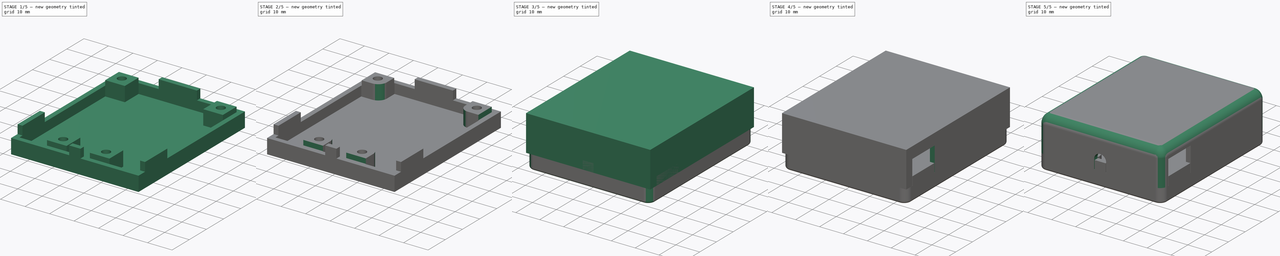
[diagram: build sequence overview — one tinted view per stage of 5, left to right]
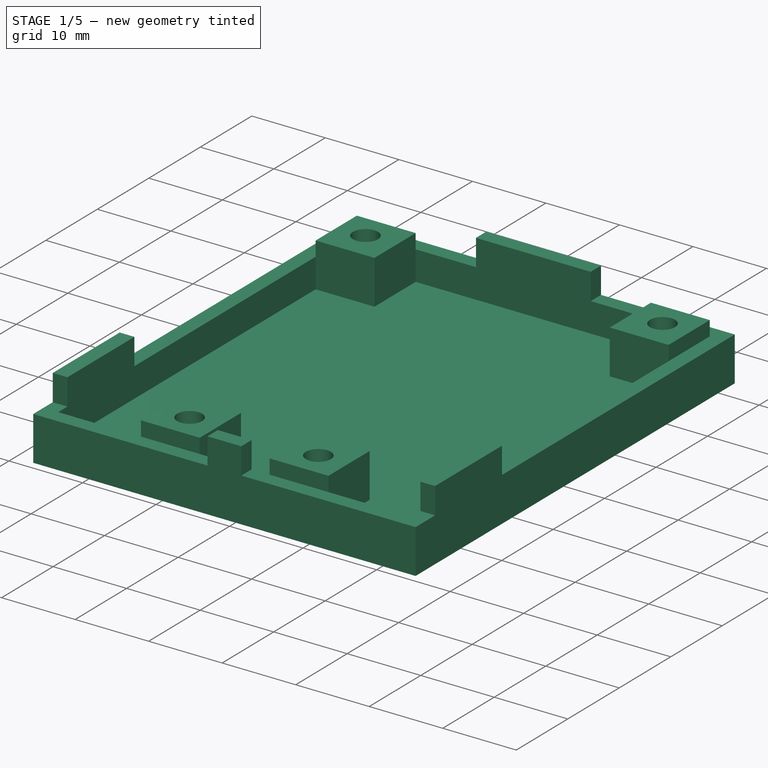
[diagram: stage 1 of 5 — iso view after this stage's code; geometry added in this stage tinted green]
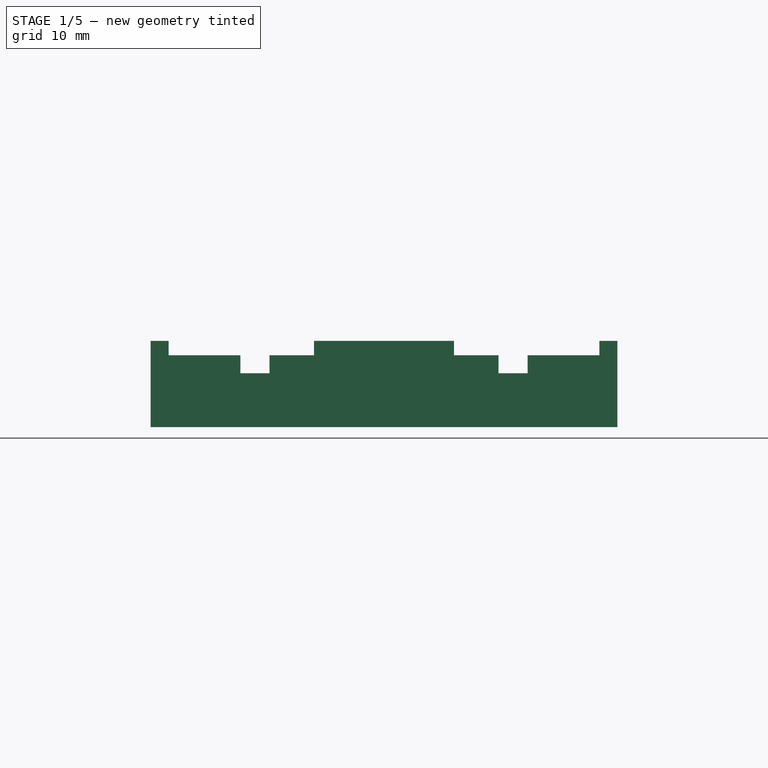
[diagram: stage 1 of 5 — front view after this stage's code; geometry added in this stage tinted green]
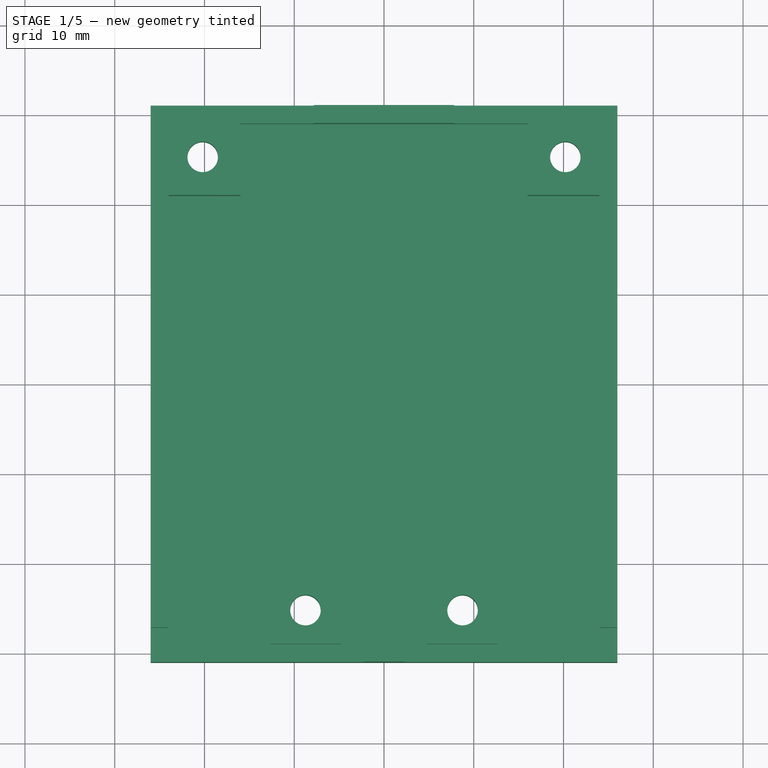
[diagram: stage 1 of 5 — top view after this stage's code; geometry added in this stage tinted green]
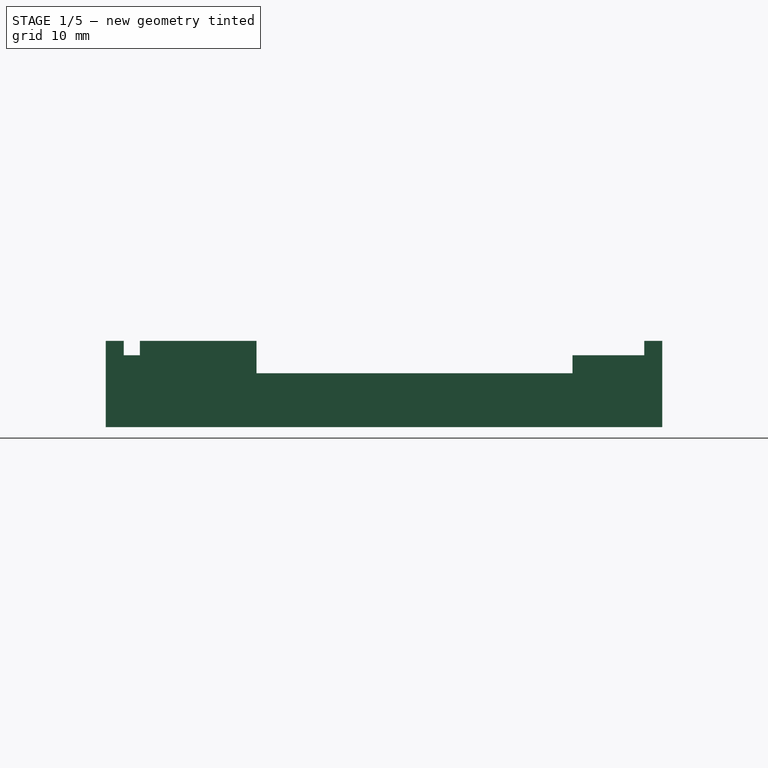
[diagram: stage 1 of 5 — right view after this stage's code; geometry added in this stage tinted green]
FCSTD DOCUMENT  (FreeCAD 0.21R33694 (Git))
Label: sigplane-power
License: All rights reserved
LicenseURL: http://en.wikipedia.org/wiki/All_rights_reserved
objects: Part::Feature×26, App::Part×17, Sketcher::SketchObject×12, PartDesign::Pocket×11, PartDesign::Fillet×8, PartDesign::Pad×5, PartDesign::Body×2
note: 88 computed .brp shape members not serialized (recipe doc carries the construction recipe); baked Part::Feature solids carry a one-line shape summary decoded from their .brp

FEATURE [PartDesign::Body] Body  label="top"
  Group = -> [Sketch,Pad,Sketch001,Pocket,Sketch002,Pad001,Sketch003,Pocket001,Sketch004,Pocket002,Sketch005,Pocket003,Sketch006,Pocket004,Fillet,Fillet001,Fillet002,Fillet003]
  Origin = -> Origin017
  Placement = pos=(0,0,-2) rot=(0,0,1;0rad)
  Tip = -> Fillet003
FEATURE [Sketcher::SketchObject] Sketch007
  FullyConstrained = true
  MapMode = 5
  Support = -> [XY_Plane018]
  sketch-geometry (4):
    g0: LineSegment StartX=-26 StartY=31 StartZ=0 EndX=26 EndY=31 EndZ=0
    g1: LineSegment StartX=26 StartY=31 StartZ=0 EndX=26 EndY=-31 EndZ=0
    g2: LineSegment StartX=26 StartY=-31 StartZ=0 EndX=-26 EndY=-31 EndZ=0
    g3: LineSegment StartX=-26 StartY=-31 StartZ=0 EndX=-26 EndY=31 EndZ=0
  constraints (11):
    c: Coincident(g0,g1)
    c: Coincident(g1,g2)
    c: Coincident(g2,g3)
    c: Coincident(g3,g0)
    c: Horizontal(g0)
    c: Horizontal(g2)
    c: Vertical(g1)
    c: Vertical(g3)
    c: DistanceX(g0,g0) = 52
    c: DistanceY(g3,g3) = 62
    c: Symmetric(g0,g1,g-1)
FEATURE [PartDesign::Pad] Pad002
  Direction = (0,0,1)
  Length = 6
  Length2 = 10
  Profile = -> Sketch007
  ReferenceAxis = -> Sketch007 [N_Axis]
  Reversed = true
  Type = 0
FEATURE [Sketcher::SketchObject] Sketch008
  FullyConstrained = true
  MapMode = 5
  Support = -> [Pad002]
  sketch-geometry (4):
    g0: LineSegment StartX=-24 StartY=29 StartZ=0 EndX=24 EndY=29 EndZ=0
    g1: LineSegment StartX=24 StartY=29 StartZ=0 EndX=24 EndY=-29 EndZ=0
    g2: LineSegment StartX=24 StartY=-29 StartZ=0 EndX=-24 EndY=-29 EndZ=0
    g3: LineSegment StartX=-24 StartY=-29 StartZ=0 EndX=-24 EndY=29 EndZ=0
  constraints (11):
    c: Coincident(g0,g1)
    c: Coincident(g1,g2)
    c: Coincident(g2,g3)
    c: Coincident(g3,g0)
    c: Horizontal(g0)
    c: Horizontal(g2)
    c: Vertical(g1)
    c: Vertical(g3)
    c: DistanceY(g3,g3) = 58
    c: DistanceX(g0,g0) = 48
    c: Symmetric(g0,g1,g-1)
FEATURE [PartDesign::Pocket] Pocket005
  BaseFeature = -> Pad002
  Direction = (0,0,-1)
  Length = 4
  Length2 = 5
  Profile = -> Sketch008
  ReferenceAxis = -> Sketch008 [N_Axis]
  Type = 0
FEATURE [Sketcher::SketchObject] Sketch009
  ExternalGeometry = -> [Pocket005]
  FullyConstrained = false
  MapMode = 5
  Placement = pos=(0,0,-4) rot=(0,0,1;0rad)
  Support = -> [Pocket005]
  sketch-geometry (21):
    g0: LineSegment StartX=-24 StartY=29 StartZ=0 EndX=-16 EndY=29 EndZ=0
    g1: LineSegment StartX=-16 StartY=29 StartZ=0 EndX=-16 EndY=21 EndZ=0
    g2: LineSegment StartX=-16 StartY=21 StartZ=0 EndX=-24 EndY=21 EndZ=0
    g3: LineSegment StartX=-24 StartY=21 StartZ=0 EndX=-24 EndY=29 EndZ=0
    g4: LineSegment StartX=24 StartY=29 StartZ=0 EndX=24 EndY=21 EndZ=0
    g5: LineSegment StartX=24 StartY=21 StartZ=0 EndX=16 EndY=21 EndZ=0
    g6: LineSegment StartX=16 StartY=21 StartZ=0 EndX=16 EndY=29 EndZ=0
    g7: Circle CenterX=-20.2 CenterY=25.25 CenterZ=0 NormalX=0 NormalY=0 NormalZ=1 AngleXU=0 Radius=1.7
    g8: Circle CenterX=20.2 CenterY=25.25 CenterZ=0 NormalX=0 NormalY=0 NormalZ=1 AngleXU=0 Radius=1.7
    g9: LineSegment StartX=-12.75 StartY=-29 StartZ=0 EndX=-4.75 EndY=-29 EndZ=0
    g10: LineSegment StartX=-4.75 StartY=-29 StartZ=0 EndX=-4.75 EndY=-21 EndZ=0
    g11: LineSegment StartX=-4.75 StartY=-21 StartZ=0 EndX=-12.75 EndY=-21 EndZ=0
    g12: LineSegment StartX=-12.75 StartY=-21 StartZ=0 EndX=-12.75 EndY=-29 EndZ=0
    g13: LineSegment StartX=12.75 StartY=-29 StartZ=0 EndX=4.75 EndY=-29 EndZ=0
    g14: LineSegment StartX=4.75 StartY=-29 StartZ=0 EndX=4.75 EndY=-21 EndZ=0
    g15: LineSegment StartX=4.75 StartY=-21 StartZ=0 EndX=12.75 EndY=-21 EndZ=0
    g16: LineSegment StartX=12.75 StartY=-21 StartZ=0 EndX=12.75 EndY=-29 EndZ=0
    g17: Circle CenterX=-8.75 CenterY=-25.25 CenterZ=0 NormalX=0 NormalY=0 NormalZ=1 AngleXU=0 Radius=1.7
    g18: Circle CenterX=8.75 CenterY=-25.25 CenterZ=0 NormalX=0 NormalY=0 NormalZ=1 AngleXU=0 Radius=1.7
    g19: GeomPoint X=0 Y=-25.3477 Z=0
    g20: LineSegment StartX=16 StartY=29 StartZ=0 EndX=24 EndY=29 EndZ=0
  constraints (59):
    c: Coincident(g0,g1)
    c: Coincident(g1,g2)
    c: Coincident(g2,g3)
    c: Coincident(g3,g0)
    c: Horizontal(g0)
    c: Horizontal(g2)
    c: Vertical(g1)
    c: Vertical(g3)
    c: Coincident(g4,g5)
    c: Coincident(g5,g6)
    c: Horizontal(g5)
    c: Vertical(g4)
    c: Vertical(g6)
    c: Coincident(g9,g10)
    c: Coincident(g10,g11)
    c: Coincident(g11,g12)
    c: Horizontal(g9)
    c: Horizontal(g11)
    c: Vertical(g10)
    c: Vertical(g12)
    c: Coincident(g13,g14)
    c: Coincident(g14,g15)
    c: Coincident(g15,g16)
    c: Horizontal(g13)
    c: Horizontal(g15)
    c: Vertical(g14)
    c: Vertical(g16)
    c: Radius(g17) = 1.7
    c: DistanceY(g10,g10) = 8
    c: Equal(g11,g10)
    c: Equal(g10,g14)
    c: Equal(g14,g15)
    c: Equal(g10,g3)
    c: Equal(g3,g6)
    c: Equal(g11,g2)
    c: Horizontal(g7,g8)
    c: Horizontal(g17,g18)
    c: DistanceX(g9,g17) = 4
    c: DistanceX(g18,g13) = 4
    c: DistanceY(g9,g17) = 3.75
    c: PointOnObject(g19,g-2)
    c: Equal(g2,g5)
    c: Equal(g17,g18)
    c: Equal(g17,g7)
    c: Equal(g7,g8)
    c: Coincident(g0,g-3)
    c: DistanceX(g8,g4) = 3.8
    c: DistanceX(g0,g7) = 3.8
    c: DistanceY(g7,g0) = 3.75
    c: Coincident(g9,g12)
    c: Coincident(g13,g16)
    c: Horizontal(g-4,g13)
    c: Horizontal(g13,g9)
    c: DistanceX(g17,g19) = 8.75
    c: DistanceX(g19,g18) = 8.75
    c: Coincident(g20,g6)
    c: Coincident(g20,g4)
    c: Horizontal(g20)
    c: Coincident(g4,g-5)
FEATURE [PartDesign::Pad] Pad003  label="стойки винтов001"
  BaseFeature = -> Pocket005
  Direction = (0,0,1)
  Length = 6
  Length2 = 10
  Profile = -> Sketch009
  ReferenceAxis = -> Sketch009 [N_Axis]
  Type = 0
FEATURE [Sketcher::SketchObject] Sketch010
  ExternalGeometry = -> [Pad003]
  FullyConstrained = false
  MapMode = 5
  Placement = pos=(0,0,-6) rot=(1,0,0;3.14159rad)
  Support = -> [Pad003]
  sketch-geometry (5):
    g0: Circle CenterX=-8.75 CenterY=25.25 CenterZ=0 NormalX=0 NormalY=0 NormalZ=1 AngleXU=0 Radius=3.5
    g1: Circle CenterX=8.75 CenterY=25.25 CenterZ=0 NormalX=0 NormalY=0 NormalZ=1 AngleXU=0 Radius=3.5
    g2: Circle CenterX=20.2 CenterY=-25.25 CenterZ=0 NormalX=0 NormalY=0 NormalZ=1 AngleXU=0 Radius=3.5
    g3: Circle CenterX=-20.2 CenterY=-25.25 CenterZ=0 NormalX=0 NormalY=0 NormalZ=1 AngleXU=0 Radius=3.5
    g4: GeomPoint X=0 Y=26.5544 Z=0
  constraints (12):
    c: Radius(g0) = 3.5
    c: Equal(g0,g1)
    c: Equal(g0,g3)
    c: Equal(g3,g2)
    c: Horizontal(g3,g2)
    c: Horizontal(g0,g1)
    c: DistanceY(g-4,g2) = 5.75
    c: PointOnObject(g4,g-2)
    c: DistanceX(g0,g4) = 8.75
    c: DistanceX(g4,g1) = 8.75
    c: DistanceX(g-5,g3) = 5.8
    c: DistanceX(g2,g-4) = 5.8
FEATURE [PartDesign::Pocket] Pocket006  label="углуб винтов"
  BaseFeature = -> Pad003
  Direction = (0,0,1)
  Length = 3
  Length2 = 5
  Profile = -> Sketch010
  ReferenceAxis = -> Sketch010 [N_Axis]
  Type = 0
FEATURE [Sketcher::SketchObject] Sketch011
  ExternalGeometry = -> [Pocket006]
  FullyConstrained = true
  MapMode = 5
  Support = -> [Pocket006]
  sketch-geometry (16):
    g0: LineSegment StartX=-7.8 StartY=31 StartZ=0 EndX=7.8 EndY=31 EndZ=0
    g1: LineSegment StartX=7.8 StartY=31 StartZ=0 EndX=7.8 EndY=29 EndZ=0
    g2: LineSegment StartX=7.8 StartY=29 StartZ=0 EndX=-7.8 EndY=29 EndZ=0
    g3: LineSegment StartX=-7.8 StartY=29 StartZ=0 EndX=-7.8 EndY=31 EndZ=0
    g4: LineSegment StartX=-26 StartY=-14.2 StartZ=0 EndX=-24 EndY=-14.2 EndZ=0
    g5: LineSegment StartX=-24 StartY=-14.2 StartZ=0 EndX=-24 EndY=-27.2 EndZ=0
    g6: LineSegment StartX=-24 StartY=-27.2 StartZ=0 EndX=-26 EndY=-27.2 EndZ=0
    g7: LineSegment StartX=-26 StartY=-27.2 StartZ=0 EndX=-26 EndY=-14.2 EndZ=0
    g8: LineSegment StartX=-2.3 StartY=-29 StartZ=0 EndX=2.3 EndY=-29 EndZ=0
    g9: LineSegment StartX=2.3 StartY=-29 StartZ=0 EndX=2.3 EndY=-31 EndZ=0
    g10: LineSegment StartX=2.3 StartY=-31 StartZ=0 EndX=-2.3 EndY=-31 EndZ=0
    g11: LineSegment StartX=-2.3 StartY=-31 StartZ=0 EndX=-2.3 EndY=-29 EndZ=0
    g12: LineSegment StartX=24 StartY=-14.2 StartZ=0 EndX=26 EndY=-14.2 EndZ=0
    g13: LineSegment StartX=26 StartY=-14.2 StartZ=0 EndX=26 EndY=-27.2 EndZ=0
    g14: LineSegment StartX=26 StartY=-27.2 StartZ=0 EndX=24 EndY=-27.2 EndZ=0
    g15: LineSegment StartX=24 StartY=-27.2 StartZ=0 EndX=24 EndY=-14.2 EndZ=0
  constraints (46):
    c: Coincident(g0,g1)
    c: Coincident(g1,g2)
    c: Coincident(g2,g3)
    c: Coincident(g3,g0)
    c: Horizontal(g0)
    c: Vertical(g1)
    c: Vertical(g3)
    c: Coincident(g4,g5)
    c: Coincident(g5,g6)
    c: Coincident(g6,g7)
    c: Coincident(g7,g4)
    c: Horizontal(g4)
    c: Horizontal(g6)
    c: Vertical(g5)
    c: Vertical(g7)
    c: Coincident(g8,g9)
    c: Coincident(g9,g10)
    c: Coincident(g10,g11)
    c: Coincident(g11,g8)
    c: Horizontal(g10)
    c: Vertical(g9)
    c: Vertical(g11)
    c: Coincident(g12,g13)
    c: Coincident(g13,g14)
    c: Coincident(g14,g15)
    c: Coincident(g15,g12)
    c: Horizontal(g12)
    c: Horizontal(g14)
    c: Vertical(g13)
    c: Vertical(g15)
    c: DistanceY(g3,g3) = 2
    c: Equal(g3,g4)
    c: Equal(g4,g12)
    c: Equal(g3,g11)
    c: Horizontal(g-4,g8)
    c: Horizontal(g-3,g2)
    c: Vertical(g-4,g5)
    c: Vertical(g-5,g14)
    c: Symmetric(g8,g8,g-2)
    c: Symmetric(g2,g1,g-2)
    c: DistanceX(g10,g10) = 4.6
    c: DistanceX(g0,g0) = 15.6
    c: DistanceY(g5,g5) = 13
    c: Equal(g5,g15)
    c: Horizontal(g4,g12)
    c: DistanceY(g4,g-1) = 14.2
FEATURE [PartDesign::Pad] Pad004  label="заглушки отв"
  BaseFeature = -> Pocket006
  Direction = (0,0,1)
  Length = 3.6
  Length2 = 10
  Profile = -> Sketch011
  ReferenceAxis = -> Sketch011 [N_Axis]
  Type = 0
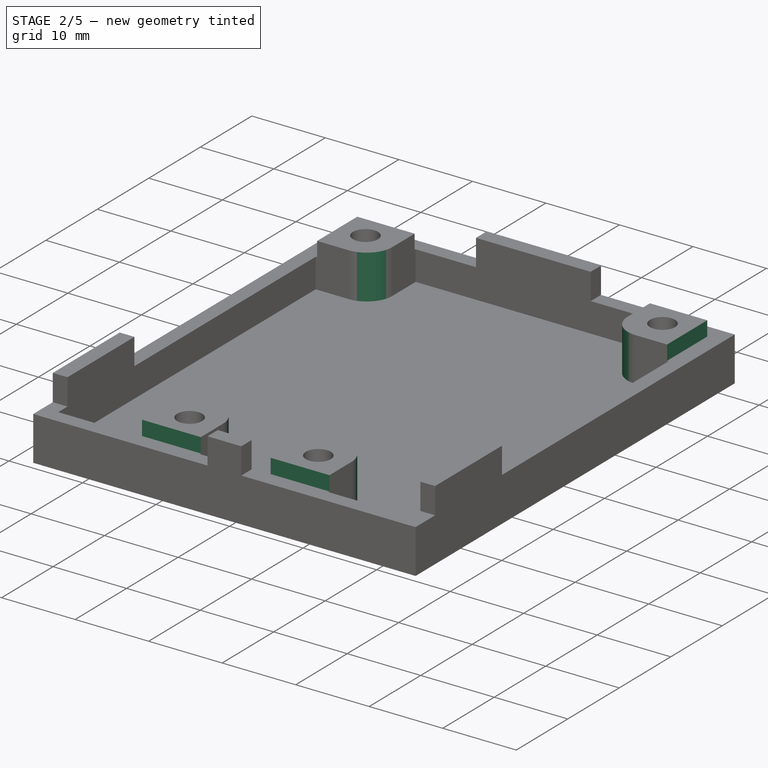
[diagram: stage 2 of 5 — iso view after this stage's code; geometry added in this stage tinted green]
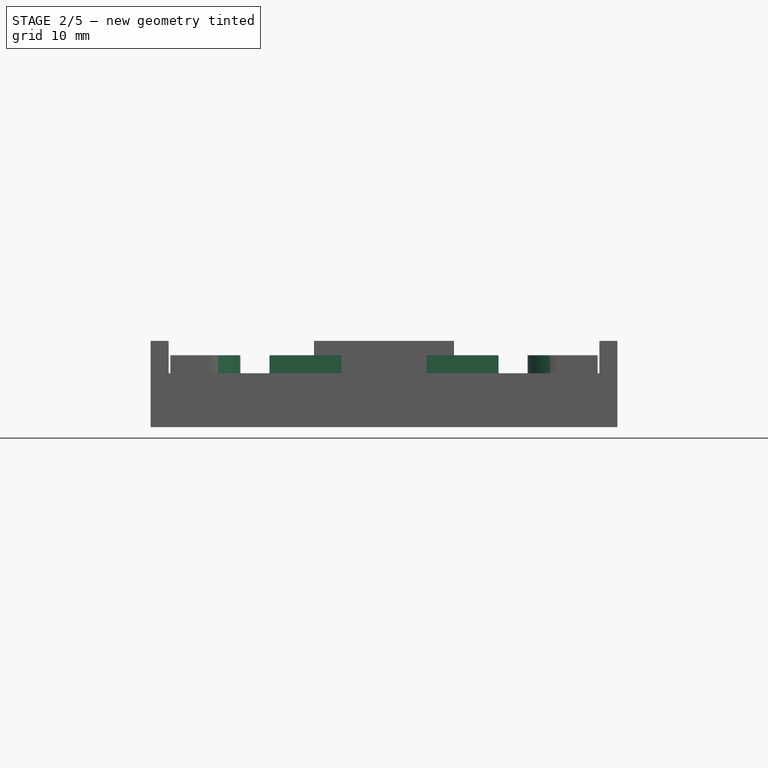
[diagram: stage 2 of 5 — front view after this stage's code; geometry added in this stage tinted green]
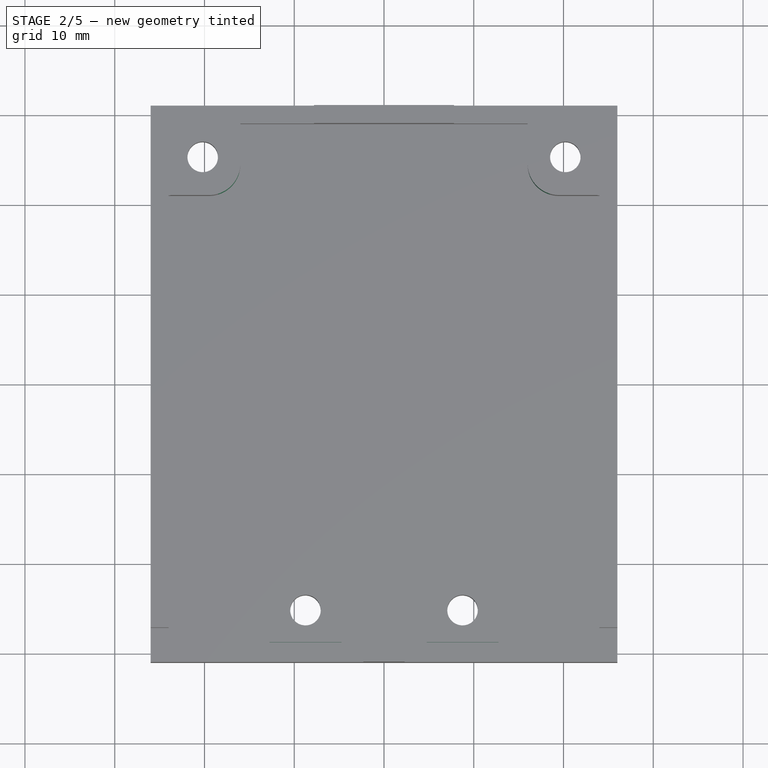
[diagram: stage 2 of 5 — top view after this stage's code; geometry added in this stage tinted green]
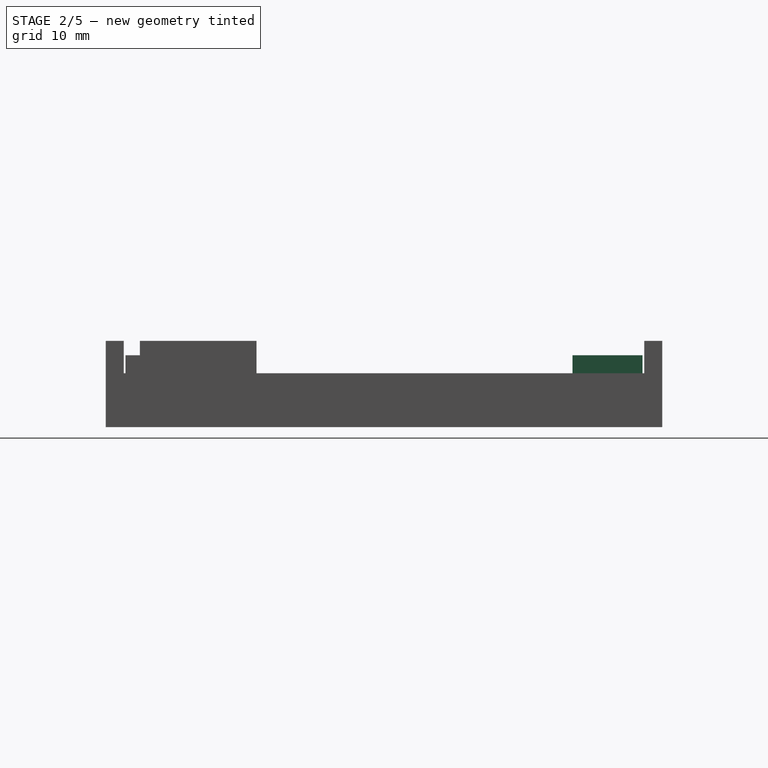
[diagram: stage 2 of 5 — right view after this stage's code; geometry added in this stage tinted green]
FEATURE [PartDesign::Pocket] Pocket007  label="зазор стоек верх"
  BaseFeature = -> Pad004
  Direction = (0,-1,0)
  Length = 0.2
  Length2 = 5
  Profile = -> Pad004 [Face15,Face24]
  Type = 0
FEATURE [PartDesign::Pocket] Pocket008  label="зазор стоек низ"
  BaseFeature = -> Pocket007
  Direction = (0,1,0)
  Length = 0.2
  Length2 = 5
  Profile = -> Pocket007 [Face32,Face39]
  Type = 0
FEATURE [PartDesign::Pocket] Pocket009  label="зазор стоек  лев"
  BaseFeature = -> Pocket008
  Direction = (1,0,0)
  Length = 0.2
  Length2 = 5
  Profile = -> Pocket008 [Face16]
  Type = 0
FEATURE [PartDesign::Pocket] Pocket010  label="зазор стоек прав"
  BaseFeature = -> Pocket009
  Direction = (-1,0,0)
  Length = 0.2
  Length2 = 5
  Profile = -> Pocket009 [Face24]
  Type = 0
FEATURE [PartDesign::Fillet] Fillet004  label="скруг стоек001"
  Base = -> Pocket010 [Edge139,Edge129,Edge159,Edge160,Edge164,Edge169]
  BaseFeature = -> Pocket010
  Radius = 3.5
  SupportTransform = false
  UseAllEdges = false
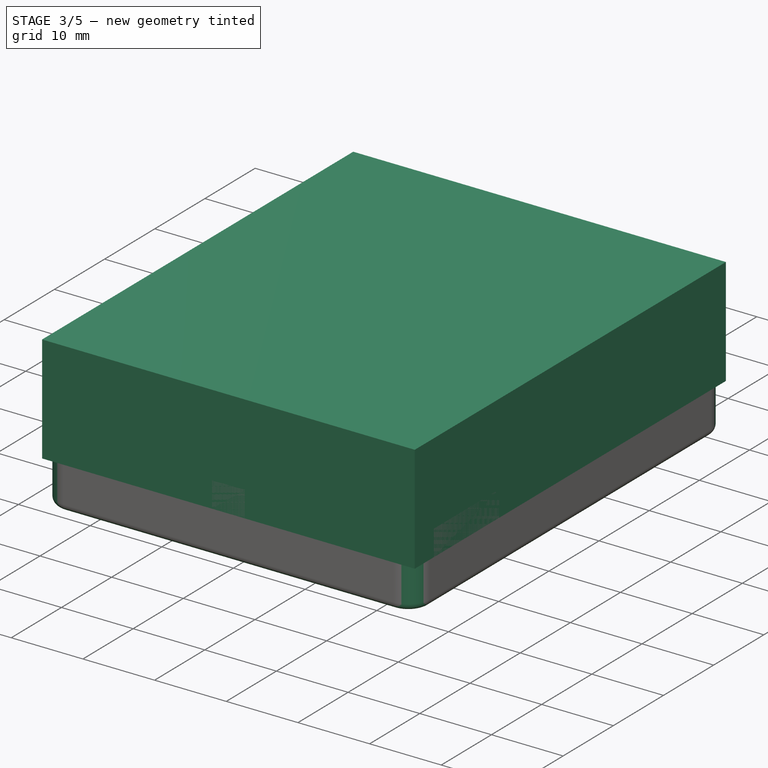
[diagram: stage 3 of 5 — iso view after this stage's code; geometry added in this stage tinted green]
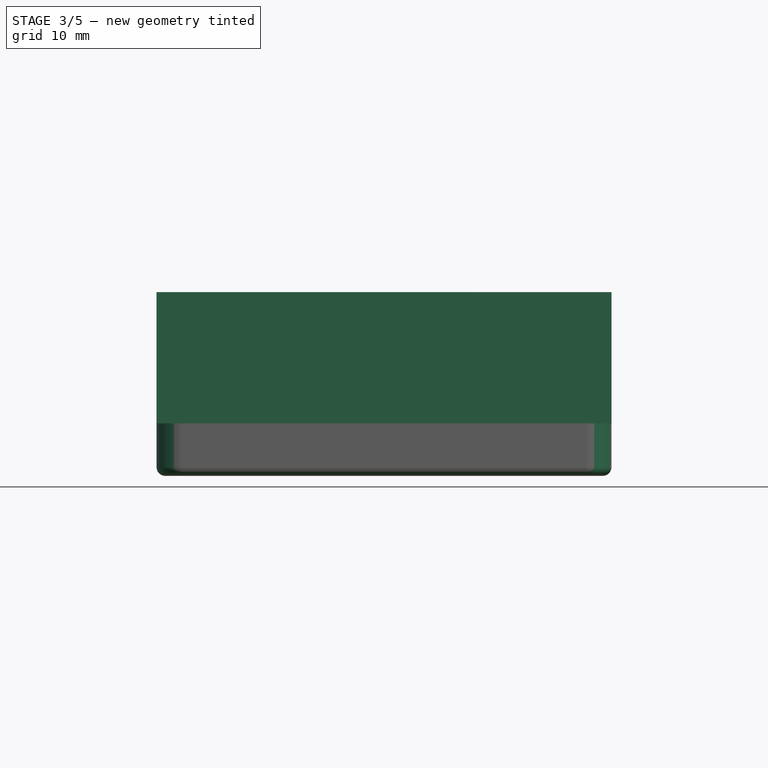
[diagram: stage 3 of 5 — front view after this stage's code; geometry added in this stage tinted green]
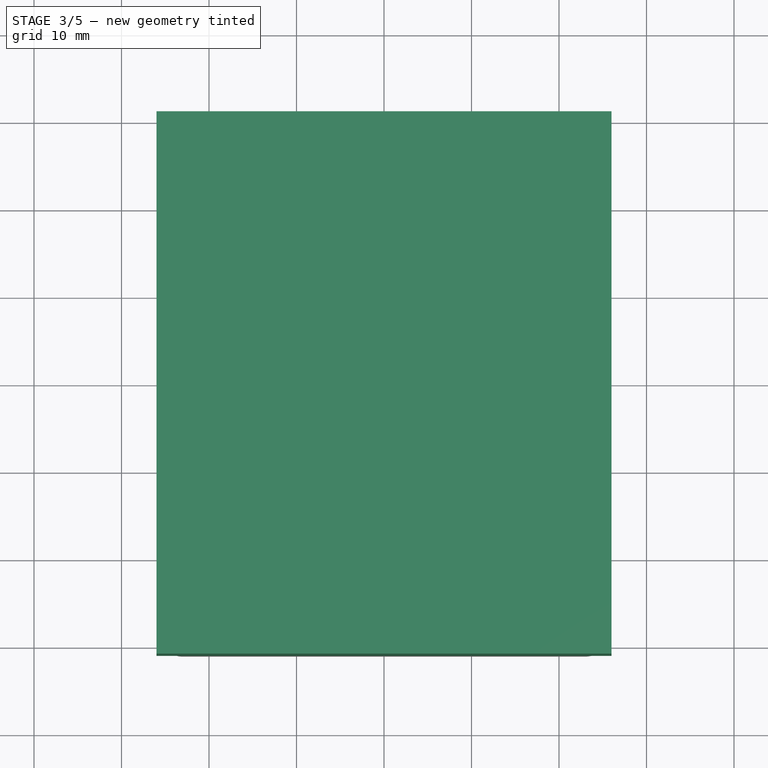
[diagram: stage 3 of 5 — top view after this stage's code; geometry added in this stage tinted green]
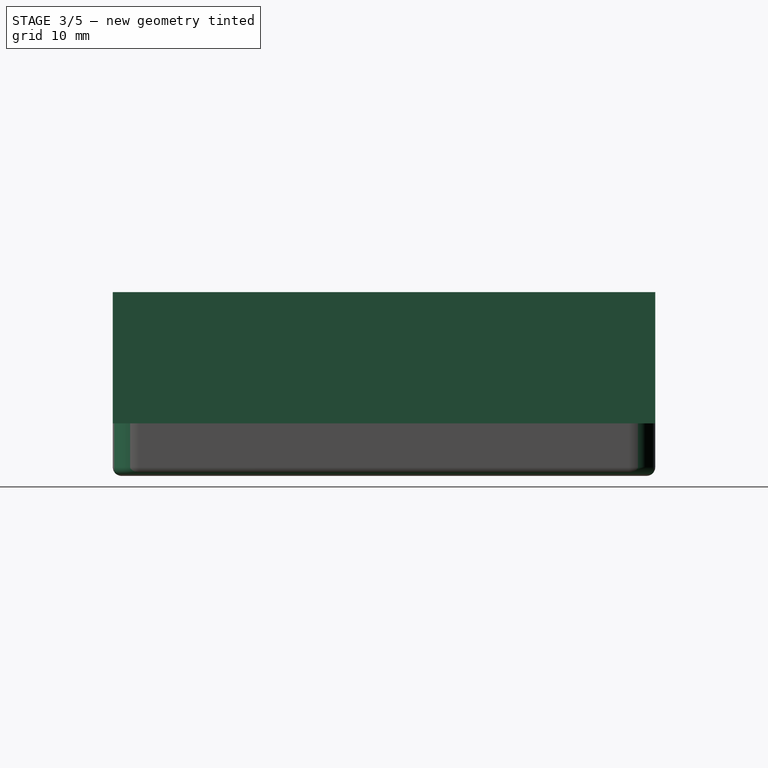
[diagram: stage 3 of 5 — right view after this stage's code; geometry added in this stage tinted green]
FEATURE [Part::Feature] Part__Feature  label="SOLID"
  shape: bbox 12.4 x 11.5 x 9.5 mm, 165 faces (baked)
FEATURE [App::Part] JST_XH_S4B_XH_A_1x04_P2_50mm_Horizontal  label="JST_XH_S4B-XH-A_1x04_P2.50mm_Horizontal"
  Group = -> [Part__Feature]
  Origin = -> Origin
  Placement = pos=(-16.256,-16.951,1.65) rot=(0,0,-1;1.5708rad)
FEATURE [Part::Feature] Part__Feature001  label="SOLID001"
  shape: bbox 2 x 1.2 x 0.45 mm, 26 faces (baked)
FEATURE [App::Part] R_0805_2012Metric
  Group = -> [Part__Feature001]
  Origin = -> Origin001
  Placement = pos=(4.191,10.414,1.65) rot=(0,0,1;0rad)
FEATURE [Part::Feature] Part__Feature002  label="SOLID002"
  shape: bbox 2.54 x 7.62 x 11.54 mm, 76 faces (baked)
FEATURE [App::Part] PinHeader_1x03_P2_54mm_Vertical  label="PinHeader_1x03_P2.54mm_Vertical"
  Group = -> [Part__Feature002]
  Origin = -> Origin002
  Placement = pos=(21.336,-10.414,1.65) rot=(0,0,-1;1.5708rad)
FEATURE [Part::Feature] Part__Feature003  label="SOLID003"
  shape: bbox 12.4 x 11.5 x 9.5 mm, 165 faces (baked)
FEATURE [App::Part] JST_XH_S4B_XH_A_1x04_P2_50mm_Horizontal001  label="JST_XH_S4B-XH-A_1x04_P2.50mm_Horizontal001"
  Group = -> [Part__Feature003]
  Origin = -> Origin003
  Placement = pos=(16.256,-24.451,1.65) rot=(0,0,1;1.5708rad)
FEATURE [Part::Feature] Part__Feature004  label="COMPOUND"
  shape: bbox 9.25 x 10 x 4.4 mm, 13 faces (baked)
FEATURE [Part::Feature] Part__Feature005  label="COMPOUND001"
  shape: bbox 7.55 x 10 x 1.27 mm, 12 faces (baked)
FEATURE [Part::Feature] Part__Feature006  label="COMPOUND002"
  shape: bbox 4.95 x 1.24 x 2.95 mm, 22 faces (baked)
FEATURE [Part::Feature] Part__Feature007  label="COMPOUND003"
  shape: bbox 1.3 x 1.24 x 0.5 mm, 10 faces (baked)
FEATURE [Part::Feature] Part__Feature008  label="COMPOUND004"
  shape: bbox 4.95 x 1.24 x 2.95 mm, 22 faces (baked)
FEATURE [App::Part] COMPOUND  label="COMPOUND005"
  Group = -> [Part__Feature004,Part__Feature005,Part__Feature006,Part__Feature007,Part__Feature008]
  Origin = -> Origin004
FEATURE [App::Part] TO_263_2  label="TO-263-2"
  Group = -> [COMPOUND]
  Origin = -> Origin005
  Placement = pos=(4.094,0.673,1.65) rot=(0,0,1;0rad)
FEATURE [Part::Feature] Part__Feature009  label="SOLID004"
  shape: bbox 2 x 1.2 x 0.45 mm, 26 faces (baked)
FEATURE [App::Part] R_0805_2012Metric001
  Group = -> [Part__Feature009]
  Origin = -> Origin006
  Placement = pos=(-0.127,13.462,1.65) rot=(0,0,1;0rad)
FEATURE [Part::Feature] Part__Feature010  label="COMPOUND006"
  shape: bbox 9.25 x 10 x 4.4 mm, 13 faces (baked)
FEATURE [Part::Feature] Part__Feature011  label="COMPOUND007"
  shape: bbox 7.55 x 10 x 1.27 mm, 12 faces (baked)
FEATURE [Part::Feature] Part__Feature012  label="COMPOUND008"
  shape: bbox 4.95 x 1.24 x 2.95 mm, 22 faces (baked)
FEATURE [Part::Feature] Part__Feature013  label="COMPOUND009"
  shape: bbox 1.3 x 1.24 x 0.5 mm, 10 faces (baked)
FEATURE [Part::Feature] Part__Feature014  label="COMPOUND010"
  shape: bbox 4.95 x 1.24 x 2.95 mm, 22 faces (baked)
FEATURE [App::Part] COMPOUND001  label="COMPOUND011"
  Group = -> [Part__Feature010,Part__Feature011,Part__Feature012,Part__Feature013,Part__Feature014]
  Origin = -> Origin007
FEATURE [App::Part] TO_263_003  label="TO-263-003"
  Group = -> [COMPOUND001]
  Origin = -> Origin008
  Placement = pos=(-14.478,-5.872,1.65) rot=(0,0,-1;1.5708rad)
FEATURE [Part::Feature] Part__Feature015  label="SOLID005"
  shape: bbox 2 x 1.2 x 0.45 mm, 26 faces (baked)
FEATURE [App::Part] R_0805_2012Metric002
  Group = -> [Part__Feature015]
  Origin = -> Origin009
  Placement = pos=(4.191,13.462,1.65) rot=(0,0,1;0rad)
FEATURE [Part::Feature] Part__Feature016  label="SOLID006"
  shape: bbox 2 x 1.2 x 0.45 mm, 26 faces (baked)
FEATURE [App::Part] R_0805_2012Metric003
  Group = -> [Part__Feature016]
  Origin = -> Origin010
  Placement = pos=(-4.4215,10.414,1.65) rot=(0,0,1;0rad)
FEATURE [Part::Feature] Part__Feature017  label="SOLID007"
  shape: bbox 2 x 1.2 x 0.45 mm, 26 faces (baked)
FEATURE [App::Part] R_0805_2012Metric004
  Group = -> [Part__Feature017]
  Origin = -> Origin011
  Placement = pos=(-4.4215,13.462,1.65) rot=(0,0,1;0rad)
FEATURE [Part::Feature] Part__Feature018  label="SOLID008"
  shape: bbox 2 x 1.2 x 0.45 mm, 26 faces (baked)
FEATURE [App::Part] R_0805_2012Metric005
  Group = -> [Part__Feature018]
  Origin = -> Origin012
  Placement = pos=(-0.127,10.414,1.65) rot=(0,0,1;0rad)
FEATURE [Part::Feature] Part__Feature019  label="SOLID009"
  shape: bbox 14.9 x 11.5 x 9.5 mm, 193 faces (baked)
FEATURE [App::Part] JST_XH_S5B_XH_A_1x05_P2_50mm_Horizontal  label="JST_XH_S5B-XH-A_1x05_P2.50mm_Horizontal"
  Group = -> [Part__Feature019]
  Origin = -> Origin013
  Placement = pos=(5,21.336,1.65) rot=(0,0,1;3.14159rad)
FEATURE [Part::Feature] Part__Feature020  label="COMPOUND012"
  shape: bbox 9.25 x 10 x 4.4 mm, 13 faces (baked)
FEATURE [Part::Feature] Part__Feature021  label="COMPOUND013"
  shape: bbox 7.55 x 10 x 1.27 mm, 12 faces (baked)
FEATURE [Part::Feature] Part__Feature022  label="COMPOUND014"
  shape: bbox 4.95 x 1.24 x 2.95 mm, 22 faces (baked)
FEATURE [Part::Feature] Part__Feature023  label="COMPOUND015"
  shape: bbox 1.3 x 1.24 x 0.5 mm, 10 faces (baked)
FEATURE [Part::Feature] Part__Feature024  label="COMPOUND016"
  shape: bbox 4.95 x 1.24 x 2.95 mm, 22 faces (baked)
FEATURE [App::Part] COMPOUND002  label="COMPOUND017"
  Group = -> [Part__Feature020,Part__Feature021,Part__Feature022,Part__Feature023,Part__Feature024]
  Origin = -> Origin014
FEATURE [App::Part] TO_263_004  label="TO-263-004"
  Group = -> [COMPOUND002]
  Origin = -> Origin015
  Placement = pos=(4.094,-11.792,1.65) rot=(0,0,1;0rad)
FEATURE [Part::Feature] Part__Feature025  label="sigplane-power PCB"
  shape: bbox 47.24 x 57.4 x 1.6 mm, 28 faces (baked)
FEATURE [App::Part] sigplane_power_1  label="sigplane-power 1"
  Group = -> [JST_XH_S4B_XH_A_1x04_P2_50mm_Horizontal,R_0805_2012Metric,PinHeader_1x03_P2_54mm_Vertical,JST_XH_S4B_XH_A_1x04_P2_50mm_Horizontal001,TO_263_2,R_0805_2012Metric001,TO_263_003,R_0805_2012Metric002,R_0805_2012Metric003,R_0805_2012Metric004,R_0805_2012Metric005,JST_XH_S5B_XH_A_1x05_P2_50mm_Horizontal,TO_263_004,Part__Feature025]
  Origin = -> Origin016
FEATURE [Sketcher::SketchObject] Sketch
  FullyConstrained = true
  MapMode = 5
  Support = -> [XY_Plane017]
  sketch-geometry (4):
    g0: LineSegment StartX=-26 StartY=31 StartZ=0 EndX=26 EndY=31 EndZ=0
    g1: LineSegment StartX=26 StartY=31 StartZ=0 EndX=26 EndY=-31 EndZ=0
    g2: LineSegment StartX=26 StartY=-31 StartZ=0 EndX=-26 EndY=-31 EndZ=0
    g3: LineSegment StartX=-26 StartY=-31 StartZ=0 EndX=-26 EndY=31 EndZ=0
  constraints (11):
    c: Coincident(g0,g1)
    c: Coincident(g1,g2)
    c: Coincident(g2,g3)
    c: Coincident(g3,g0)
    c: Horizontal(g0)
    c: Horizontal(g2)
    c: Vertical(g1)
    c: Vertical(g3)
    c: DistanceX(g0,g0) = 52
    c: DistanceY(g3,g3) = 62
    c: Symmetric(g0,g1,g-1)
FEATURE [PartDesign::Pad] Pad
  Direction = (0,0,1)
  Length = 15
  Length2 = 10
  Profile = -> Sketch
  ReferenceAxis = -> Sketch [N_Axis]
  Type = 0
FEATURE [PartDesign::Fillet] Fillet005  label="скруг внутр001"
  Base = -> Fillet004 [Edge18,Edge16,Edge8,Edge11,Edge25,Edge13]
  BaseFeature = -> Fillet004
  Radius = 1
  SupportTransform = false
  UseAllEdges = false
FEATURE [PartDesign::Fillet] Fillet006  label="скруг бок001"
  Base = -> Fillet005 [Edge148,Edge149,Edge167,Edge152]
  BaseFeature = -> Fillet005
  Radius = 3
  SupportTransform = false
  UseAllEdges = false
FEATURE [PartDesign::Fillet] Fillet007  label="скруг низ"
  Base = -> Fillet006 [Edge58,Edge55,Edge22,Edge14]
  BaseFeature = -> Fillet006
  Radius = 1
  SupportTransform = false
  UseAllEdges = false
FEATURE [PartDesign::Body] Body001  label="bottom"
  Group = -> [Sketch007,Pad002,Sketch008,Pocket005,Sketch009,Pad003,Sketch010,Pocket006,Sketch011,Pad004,Pocket007,Pocket008,Pocket009,Pocket010,Fillet004,Fillet005,Fillet006,Fillet007]
  Origin = -> Origin018
  Placement = pos=(0,0,-2) rot=(0,0,1;0rad)
  Tip = -> Fillet007
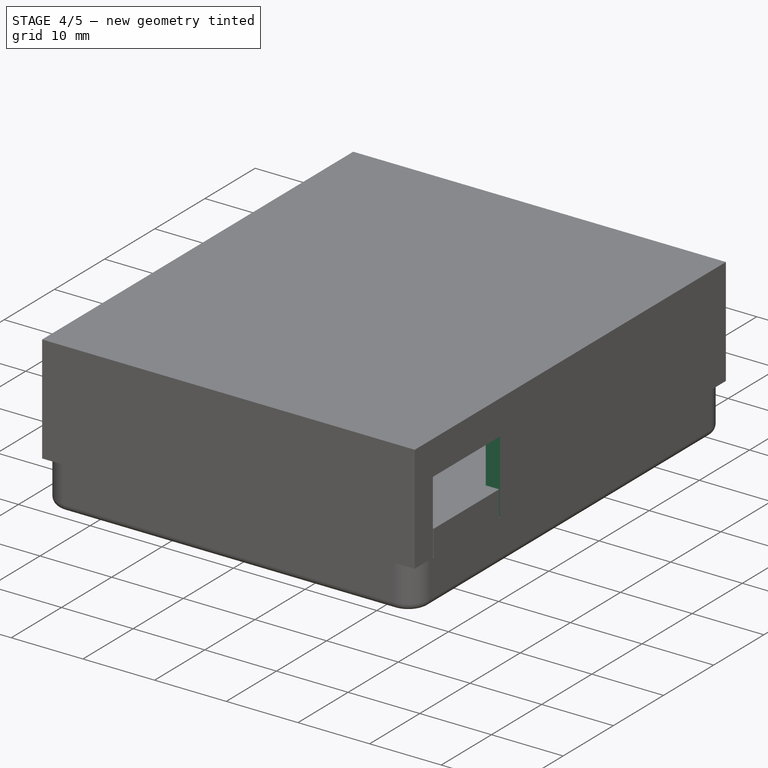
[diagram: stage 4 of 5 — iso view after this stage's code; geometry added in this stage tinted green]
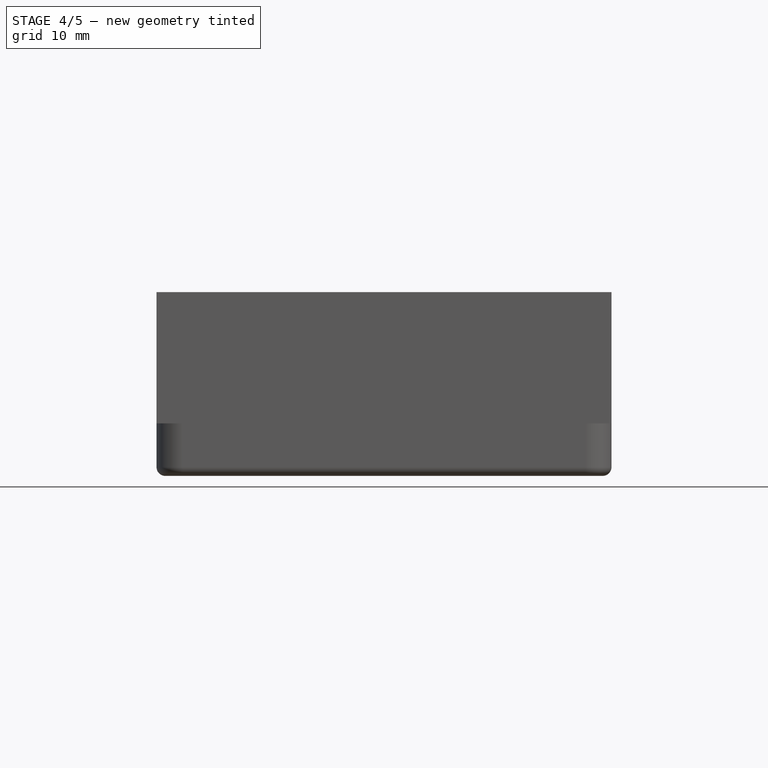
[diagram: stage 4 of 5 — front view after this stage's code; geometry added in this stage tinted green]
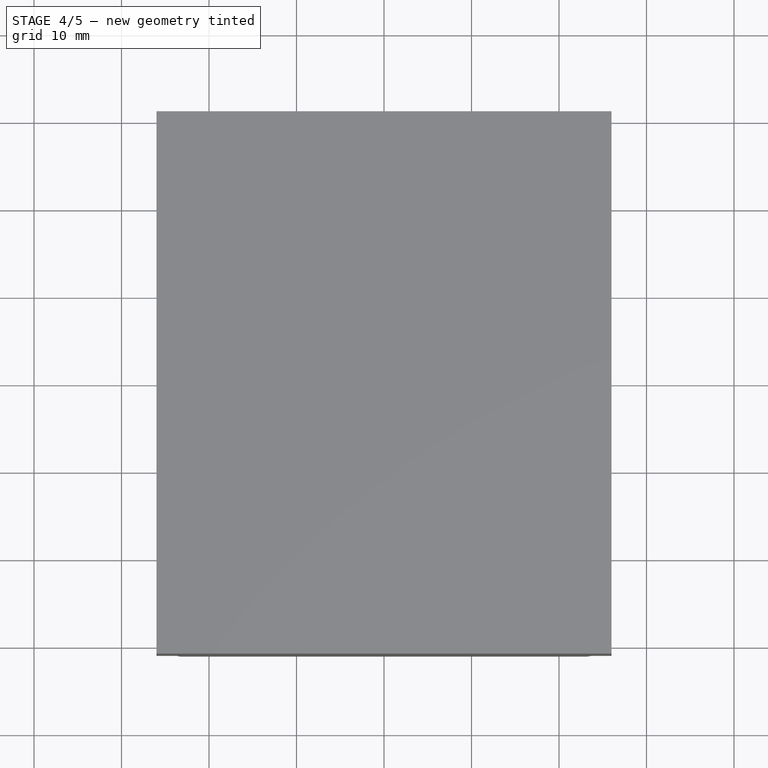
[diagram: stage 4 of 5 — top view after this stage's code; geometry added in this stage tinted green]
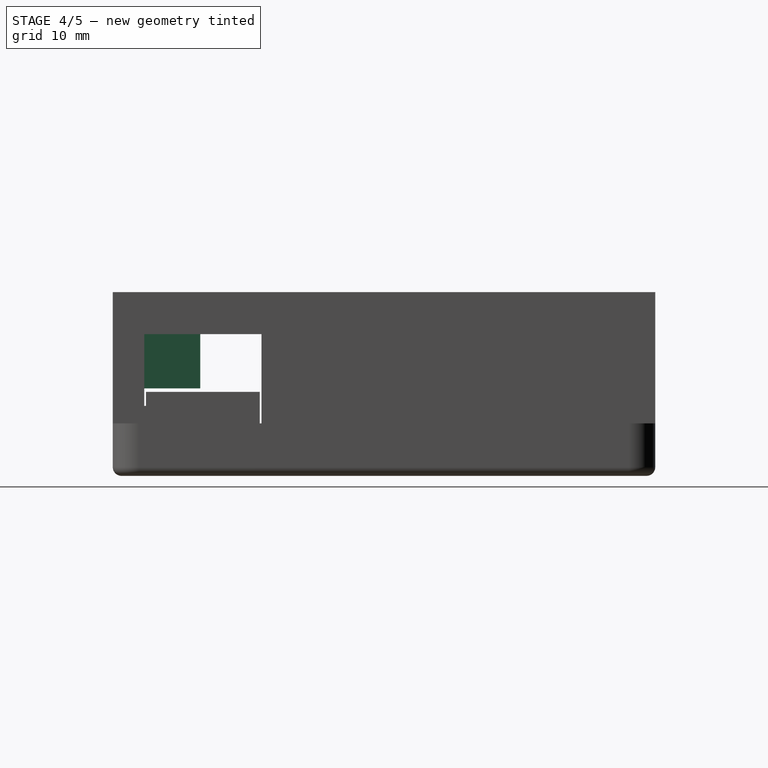
[diagram: stage 4 of 5 — right view after this stage's code; geometry added in this stage tinted green]
FEATURE [Sketcher::SketchObject] Sketch001
  FullyConstrained = true
  MapMode = 5
  Placement = pos=(0,0,0) rot=(1,0,0;3.14159rad)
  Support = -> [Pad]
  sketch-geometry (4):
    g0: LineSegment StartX=-24 StartY=29 StartZ=0 EndX=24 EndY=29 EndZ=0
    g1: LineSegment StartX=24 StartY=29 StartZ=0 EndX=24 EndY=-29 EndZ=0
    g2: LineSegment StartX=24 StartY=-29 StartZ=0 EndX=-24 EndY=-29 EndZ=0
    g3: LineSegment StartX=-24 StartY=-29 StartZ=0 EndX=-24 EndY=29 EndZ=0
  constraints (11):
    c: Coincident(g0,g1)
    c: Coincident(g1,g2)
    c: Coincident(g2,g3)
    c: Coincident(g3,g0)
    c: Horizontal(g0)
    c: Horizontal(g2)
    c: Vertical(g1)
    c: Vertical(g3)
    c: DistanceX(g0,g0) = 48
    c: DistanceY(g3,g3) = 58
    c: Symmetric(g0,g1,g-1)
FEATURE [PartDesign::Pocket] Pocket
  BaseFeature = -> Pad
  Direction = (0,0,1)
  Length = 13
  Length2 = 5
  Profile = -> Sketch001
  ReferenceAxis = -> Sketch001 [N_Axis]
  Type = 0
FEATURE [Sketcher::SketchObject] Sketch002
  ExternalGeometry = -> [Pocket]
  FullyConstrained = false
  MapMode = 5
  Placement = pos=(0,0,13) rot=(1,0,0;3.14159rad)
  Support = -> [Pocket]
  sketch-geometry (21):
    g0: LineSegment StartX=-24 StartY=-29 StartZ=0 EndX=-16 EndY=-29 EndZ=0
    g1: LineSegment StartX=-16 StartY=-29 StartZ=0 EndX=-16 EndY=-21 EndZ=0
    g2: LineSegment StartX=-16 StartY=-21 StartZ=0 EndX=-24 EndY=-21 EndZ=0
    g3: LineSegment StartX=-24 StartY=-21 StartZ=0 EndX=-24 EndY=-29 EndZ=0
    g4: Circle CenterX=-20.2 CenterY=-25.25 CenterZ=0 NormalX=0 NormalY=0 NormalZ=1 AngleXU=0 Radius=0.9
    g5: LineSegment StartX=24 StartY=-29 StartZ=0 EndX=16 EndY=-29 EndZ=0
    g6: LineSegment StartX=16 StartY=-29 StartZ=0 EndX=16 EndY=-21 EndZ=0
    g7: LineSegment StartX=16 StartY=-21 StartZ=0 EndX=24 EndY=-21 EndZ=0
    g8: LineSegment StartX=24 StartY=-21 StartZ=0 EndX=24 EndY=-29 EndZ=0
    g9: Circle CenterX=20.2 CenterY=-25.25 CenterZ=0 NormalX=0 NormalY=0 NormalZ=1 AngleXU=0 Radius=0.9
    g10: LineSegment StartX=-12.75 StartY=29 StartZ=0 EndX=-4.75 EndY=29 EndZ=0
    g11: LineSegment StartX=-4.75 StartY=29 StartZ=0 EndX=-4.75 EndY=21 EndZ=0
    g12: LineSegment StartX=-4.75 StartY=21 StartZ=0 EndX=-12.75 EndY=21 EndZ=0
    g13: LineSegment StartX=-12.75 StartY=21 StartZ=0 EndX=-12.75 EndY=29 EndZ=0
    g14: LineSegment StartX=4.75 StartY=29 StartZ=0 EndX=12.75 EndY=29 EndZ=0
    g15: LineSegment StartX=12.75 StartY=29 StartZ=0 EndX=12.75 EndY=21 EndZ=0
    g16: LineSegment StartX=12.75 StartY=21 StartZ=0 EndX=4.75 EndY=21 EndZ=0
    g17: LineSegment StartX=4.75 StartY=21 StartZ=0 EndX=4.75 EndY=29 EndZ=0
    g18: Circle CenterX=-8.75 CenterY=25.25 CenterZ=0 NormalX=0 NormalY=0 NormalZ=1 AngleXU=0 Radius=0.9
    g19: Circle CenterX=8.75 CenterY=25.25 CenterZ=0 NormalX=0 NormalY=0 NormalZ=1 AngleXU=0 Radius=0.9
    g20: GeomPoint X=0 Y=27.1854 Z=0
  constraints (59):
    c: Coincident(g0,g1)
    c: Coincident(g1,g2)
    c: Coincident(g2,g3)
    c: Coincident(g3,g0)
    c: Horizontal(g0)
    c: Horizontal(g2)
    c: Vertical(g1)
    c: Vertical(g3)
    c: Coincident(g0,g-4)
    c: Radius(g4) = 0.9
    c: DistanceY(g0,g4) = 3.75
    c: DistanceX(g0,g4) = 3.8
    c: DistanceX(g2,g2) = 8
    c: DistanceY(g1,g1) = 8
    c: Coincident(g5,g6)
    c: Coincident(g6,g7)
    c: Coincident(g7,g8)
    c: Coincident(g8,g5)
    c: Horizontal(g5)
    c: Horizontal(g7)
    c: Vertical(g6)
    c: Vertical(g8)
    c: Coincident(g5,g-5)
    c: Equal(g1,g6)
    c: Equal(g2,g7)
    c: Equal(g4,g9)
    c: Horizontal(g4,g9)
    c: DistanceX(g9,g5) = 3.8
    c: Coincident(g10,g11)
    c: Coincident(g11,g12)
    c: Coincident(g12,g13)
    c: Coincident(g13,g10)
    c: Horizontal(g10)
    c: Horizontal(g12)
    c: Vertical(g11)
    c: Vertical(g13)
    c: Coincident(g14,g15)
    c: Coincident(g15,g16)
    c: Coincident(g16,g17)
    c: Coincident(g17,g14)
    c: Horizontal(g14)
    c: Horizontal(g16)
    c: Vertical(g15)
    c: Vertical(g17)
    c: Horizontal(g-6,g10)
    c: Horizontal(g10,g14)
    c: Equal(g1,g13)
    c: Equal(g11,g17)
    c: Equal(g2,g12)
    c: Equal(g12,g16)
    c: Equal(g4,g18)
    c: Equal(g18,g19)
    c: Horizontal(g18,g19)
    c: DistanceY(g18,g10) = 3.75
    c: DistanceX(g18,g10) = 4
    c: DistanceX(g14,g19) = 4
    c: PointOnObject(g20,g-2)
    c: DistanceX(g18,g20) = 8.75
    c: DistanceX(g20,g19) = 8.75
FEATURE [PartDesign::Pad] Pad001  label="стойки винтов"
  BaseFeature = -> Pocket
  Direction = (0,0,-1)
  Length = 9
  Length2 = 10
  Profile = -> Sketch002
  ReferenceAxis = -> Sketch002 [N_Axis]
  Type = 0
FEATURE [Sketcher::SketchObject] Sketch003
  FullyConstrained = true
  MapMode = 5
  Placement = pos=(26,0,0) rot=(0.57735,0.57735,0.57735;2.0944rad)
  Support = -> [Pad001]
  sketch-geometry (4):
    g0: LineSegment StartX=-27.4 StartY=10.2 StartZ=0 EndX=-14 EndY=10.2 EndZ=0
    g1: LineSegment StartX=-14 StartY=10.2 StartZ=0 EndX=-14 EndY=0 EndZ=0
    g2: LineSegment StartX=-14 StartY=0 StartZ=0 EndX=-27.4 EndY=0 EndZ=0
    g3: LineSegment StartX=-27.4 StartY=0 StartZ=0 EndX=-27.4 EndY=10.2 EndZ=0
  constraints (12):
    c: Coincident(g0,g1)
    c: Coincident(g1,g2)
    c: Coincident(g2,g3)
    c: Coincident(g3,g0)
    c: Horizontal(g0)
    c: Horizontal(g2)
    c: Vertical(g1)
    c: Vertical(g3)
    c: PointOnObject(g1,g-1)
    c: DistanceY(g1,g1) = 10.2
    c: DistanceX(g2,g2) = 13.4
    c: DistanceX(g1,g-1) = 14
FEATURE [PartDesign::Pocket] Pocket001  label="отв прав"
  BaseFeature = -> Pad001
  Direction = (-1,0,0)
  Length = 0
  Length2 = 5
  Profile = -> Sketch003
  ReferenceAxis = -> Sketch003 [N_Axis]
  Type = 2
FEATURE [Sketcher::SketchObject] Sketch004
  FullyConstrained = true
  MapMode = 5
  Placement = pos=(-26,0,0) rot=(0.57735,-0.57735,-0.57735;2.0944rad)
  Support = -> [Pocket001]
  sketch-geometry (4):
    g0: LineSegment StartX=27.4 StartY=0 StartZ=0 EndX=14 EndY=0 EndZ=0
    g1: LineSegment StartX=14 StartY=0 StartZ=0 EndX=14 EndY=10.2 EndZ=0
    g2: LineSegment StartX=14 StartY=10.2 StartZ=0 EndX=27.4 EndY=10.2 EndZ=0
    g3: LineSegment StartX=27.4 StartY=10.2 StartZ=0 EndX=27.4 EndY=0 EndZ=0
  constraints (12):
    c: Coincident(g0,g1)
    c: Coincident(g1,g2)
    c: Coincident(g2,g3)
    c: Coincident(g3,g0)
    c: Horizontal(g0)
    c: Horizontal(g2)
    c: Vertical(g1)
    c: Vertical(g3)
    c: PointOnObject(g0,g-1)
    c: DistanceX(g2,g2) = 13.4
    c: DistanceY(g1,g1) = 10.2
    c: DistanceX(g-1,g0) = 14
FEATURE [PartDesign::Pocket] Pocket002  label="отв лев"
  BaseFeature = -> Pocket001
  Direction = (1,0,0)
  Length = 5
  Length2 = 5
  Profile = -> Sketch004
  ReferenceAxis = -> Sketch004 [N_Axis]
  Type = 2
FEATURE [Sketcher::SketchObject] Sketch005
  FullyConstrained = true
  MapMode = 5
  Placement = pos=(0,31,0) rot=(0,0.707107,0.707107;3.14159rad)
  Support = -> [Pocket002]
  sketch-geometry (4):
    g0: LineSegment StartX=-8 StartY=10.2 StartZ=0 EndX=8 EndY=10.2 EndZ=0
    g1: LineSegment StartX=8 StartY=10.2 StartZ=0 EndX=8 EndY=0 EndZ=0
    g2: LineSegment StartX=8 StartY=0 StartZ=0 EndX=-8 EndY=0 EndZ=0
    g3: LineSegment StartX=-8 StartY=0 StartZ=0 EndX=-8 EndY=10.2 EndZ=0
  constraints (11):
    c: Coincident(g0,g1)
    c: Coincident(g1,g2)
    c: Coincident(g2,g3)
    c: Coincident(g3,g0)
    c: Horizontal(g0)
    c: Horizontal(g2)
    c: Vertical(g1)
    c: Vertical(g3)
    c: DistanceY(g3,g3) = 10.2
    c: DistanceX(g2,g2) = 16
    c: Symmetric(g2,g1,g-1)
FEATURE [PartDesign::Pocket] Pocket003  label="отв верх"
  BaseFeature = -> Pocket002
  Direction = (0,-1,2e-16)
  Length = 5
  Length2 = 5
  Profile = -> Sketch005
  ReferenceAxis = -> Sketch005 [N_Axis]
  Type = 2
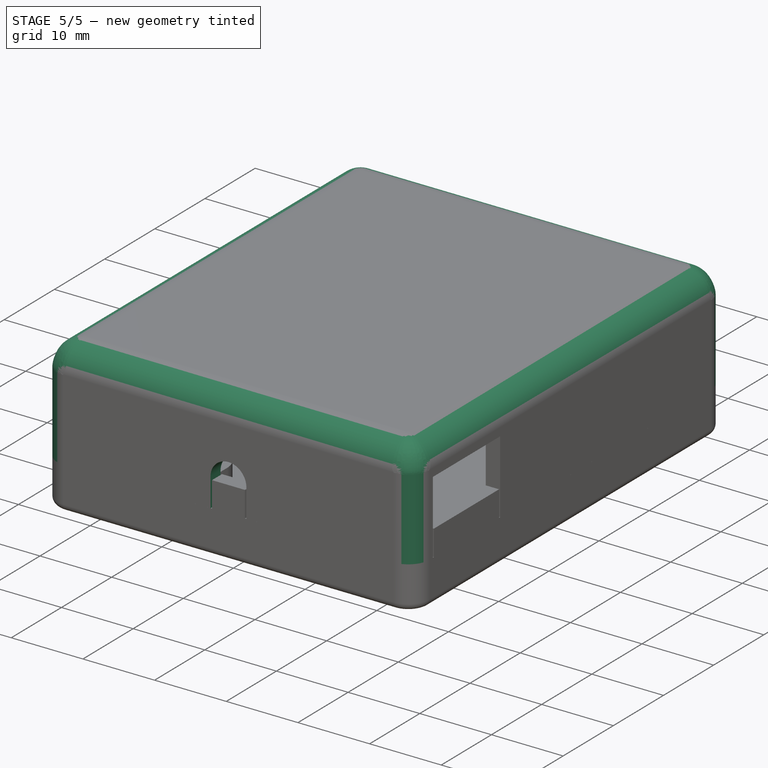
[diagram: stage 5 of 5 — iso view after this stage's code; geometry added in this stage tinted green]
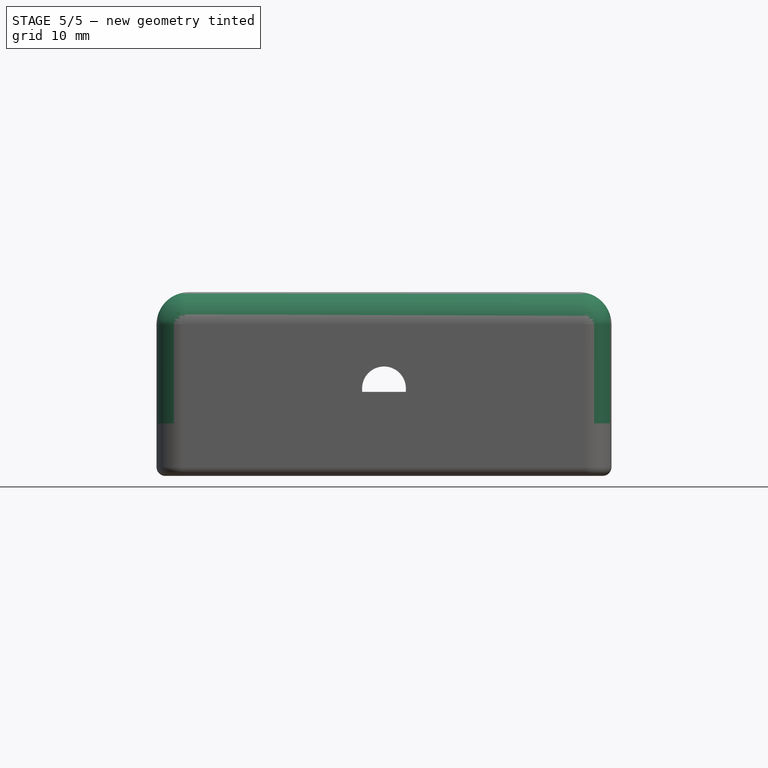
[diagram: stage 5 of 5 — front view after this stage's code; geometry added in this stage tinted green]
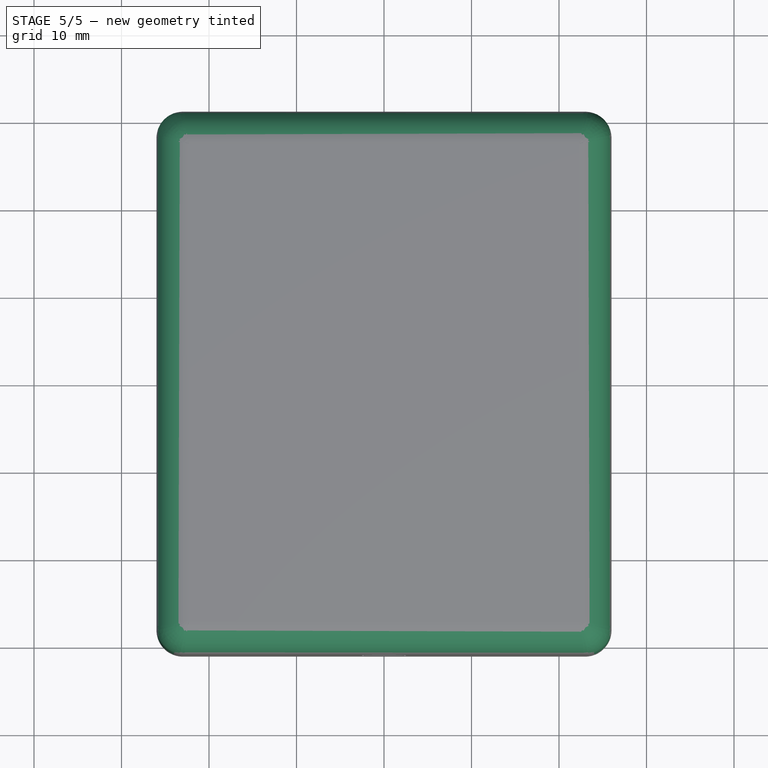
[diagram: stage 5 of 5 — top view after this stage's code; geometry added in this stage tinted green]
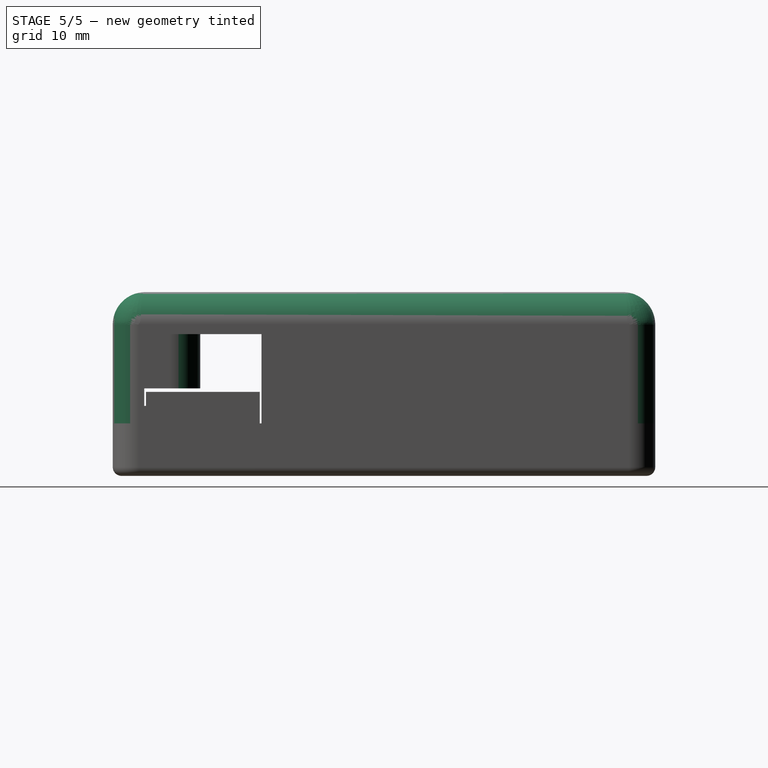
[diagram: stage 5 of 5 — right view after this stage's code; geometry added in this stage tinted green]
FEATURE [Sketcher::SketchObject] Sketch006
  FullyConstrained = true
  MapMode = 5
  Placement = pos=(0,-31,0) rot=(1,0,0;1.5708rad)
  Support = -> [Pocket003]
  sketch-geometry (4):
    g0: LineSegment StartX=-2.5 StartY=0 StartZ=0 EndX=-2.5 EndY=4 EndZ=0
    g1: LineSegment StartX=2.5 StartY=0 StartZ=0 EndX=2.5 EndY=4 EndZ=0
    g2: ArcOfCircle CenterX=0 CenterY=4 CenterZ=0 NormalX=0 NormalY=0 NormalZ=1 AngleXU=0 Radius=2.5 StartAngle=0 EndAngle=3.14159
    g3: LineSegment StartX=-2.5 StartY=0 StartZ=0 EndX=2.5 EndY=0 EndZ=0
  constraints (12):
    c: PointOnObject(g0,g-1)
    c: Vertical(g0)
    c: Vertical(g1)
    c: Coincident(g2,g0)
    c: Coincident(g2,g1)
    c: Horizontal(g0,g2)
    c: Horizontal(g2,g1)
    c: DistanceX(g0,g1) = 5
    c: DistanceY(g0,g0) = 4
    c: Symmetric(g0,g1,g-1)
    c: Coincident(g3,g0)
    c: Coincident(g3,g1)
FEATURE [PartDesign::Pocket] Pocket004  label="отв низ"
  BaseFeature = -> Pocket003
  Direction = (0,1,-2e-16)
  Length = 5
  Length2 = 5
  Profile = -> Sketch006
  ReferenceAxis = -> Sketch006 [N_Axis]
  Type = 2
FEATURE [PartDesign::Fillet] Fillet  label="скруг внутр"
  Base = -> Pocket004 [Edge49,Edge91,Edge87,Edge60,Edge83,Edge40]
  BaseFeature = -> Pocket004
  Radius = 1.7
  SupportTransform = false
  UseAllEdges = false
FEATURE [PartDesign::Fillet] Fillet001  label="скруг стоек"
  Base = -> Fillet [Edge118,Edge120,Edge126,Edge129,Edge24,Edge16]
  BaseFeature = -> Fillet
  Radius = 3.5
  SupportTransform = false
  UseAllEdges = false
FEATURE [PartDesign::Fillet] Fillet002  label="скруг верх"
  Base = -> Fillet001 [Face56]
  BaseFeature = -> Fillet001
  Radius = 3.7
  SupportTransform = false
  UseAllEdges = false
FEATURE [PartDesign::Fillet] Fillet003  label="скруг бок"
  Base = -> Fillet002 [Edge4,Edge1,Edge25,Edge9]
  BaseFeature = -> Fillet002
  Radius = 3
  SupportTransform = false
  UseAllEdges = false
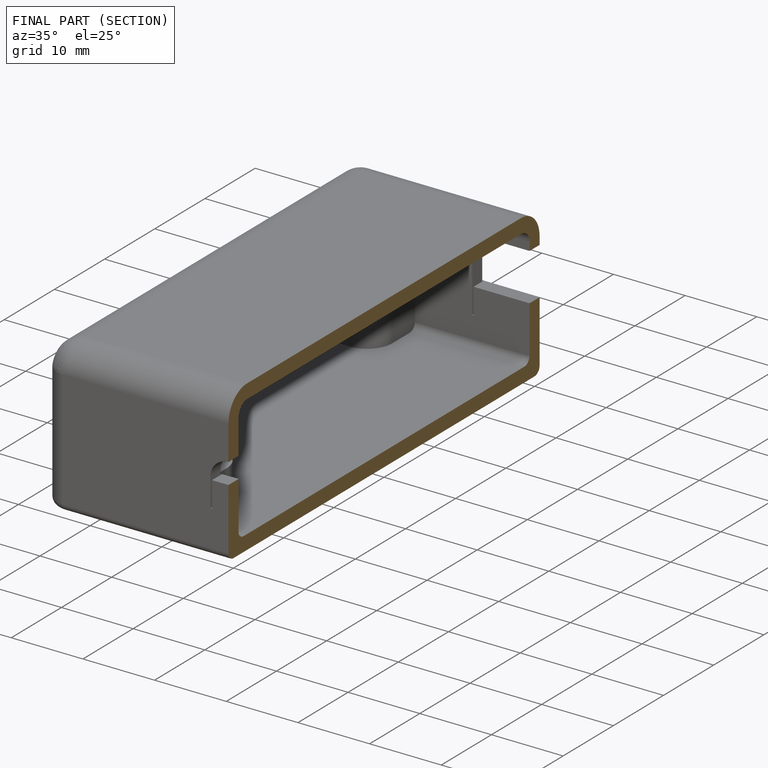
[diagram: finished part — half-section view (interior)]
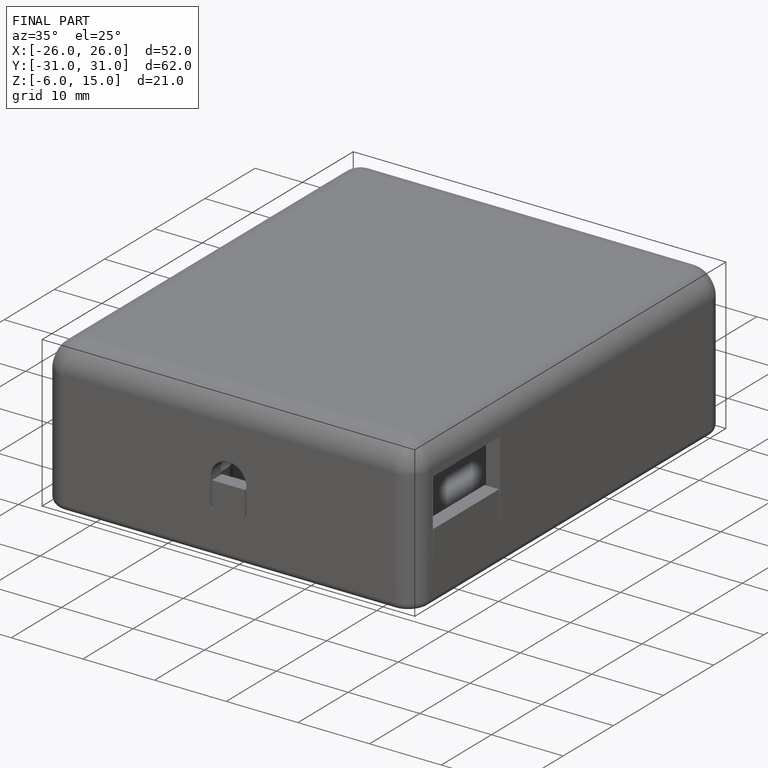
[diagram: finished part — iso view with bounding-box wireframe]
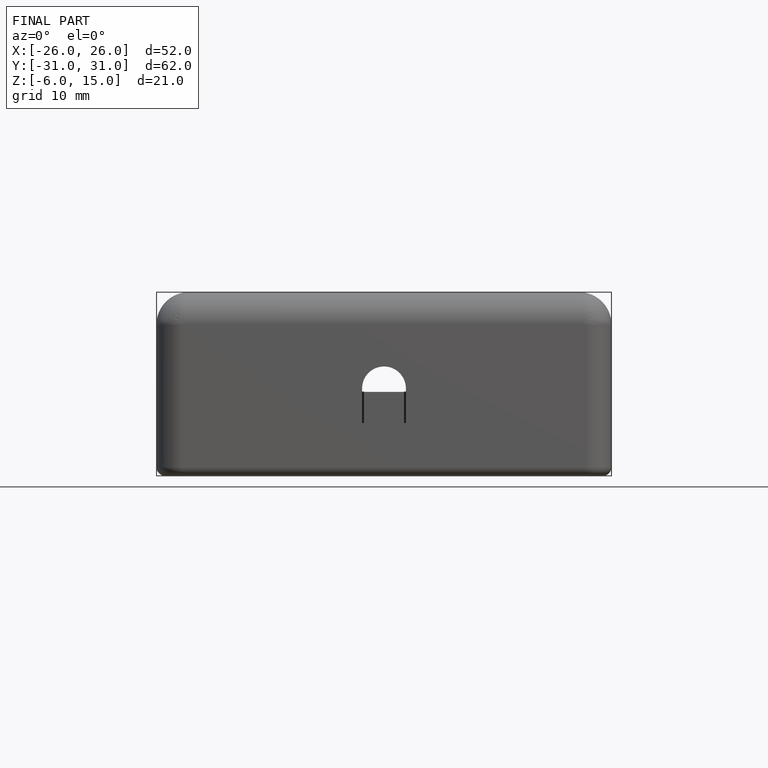
[diagram: finished part — front view with bounding-box wireframe]
